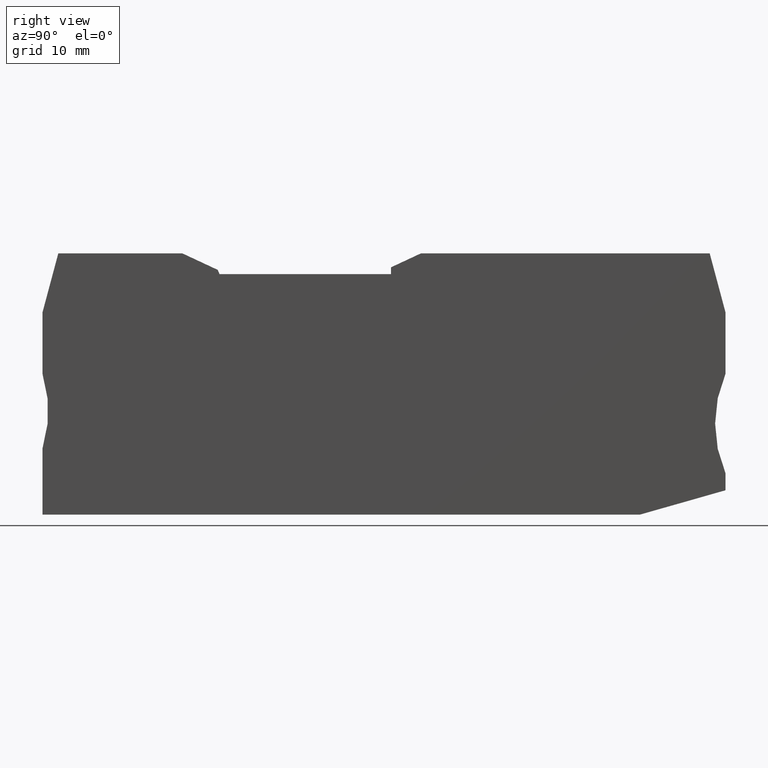
[diagram: clean part render]
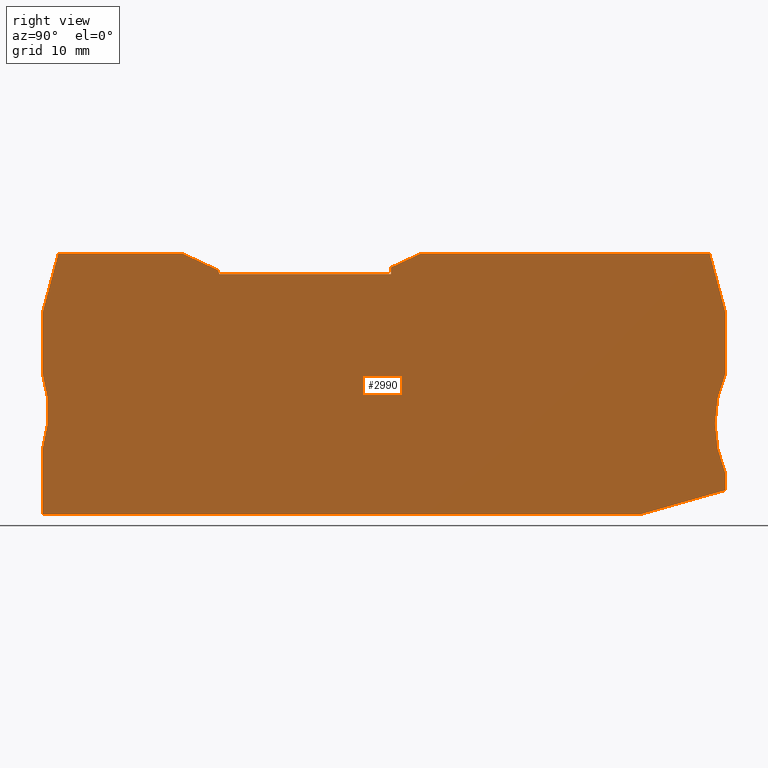
[diagram: same view with one face highlighted and labeled with its STEP entity id]
A machine part, right view. The second image highlights one B-rep face of the part: STEP entity #2990.
In plain terms, the highlighted planar face has unit normal (1, 0, 0).
Its self-contained STEP definition (entity closure, byte-faithful):
#1540=CARTESIAN_POINT('',(73.4877845817932,-13.5354749771187,
2.19999999999998));
#1550=DIRECTION('',(0.,0.,1.));
#1560=DIRECTION('',(1.,0.,0.));
#1570=AXIS2_PLACEMENT_3D('',#1540,#1550,#1560);
#1580=PLANE('',#1570);
#1590=CARTESIAN_POINT('',(8.72968082603374,-33.886127,2.19999999999998))
;
#1600=DIRECTION('',(0.,-1.,0.));
#1610=VECTOR('',#1600,1.);
#1620=LINE('',#1590,#1610);
#1630=CARTESIAN_POINT('',(8.72968082603374,-30.2000000000147,
2.19999999999998));
#1640=VERTEX_POINT('',#1630);
#1650=CARTESIAN_POINT('',(8.72968082603374,-38.2000000000045,
2.19999999999998));
#1660=VERTEX_POINT('',#1650);
#1670=EDGE_CURVE('',#1640,#1660,#1620,.T.);
#1680=ORIENTED_EDGE('',*,*,#1670,.T.);
#1690=CARTESIAN_POINT('',(-5.57940719521947,-25.7000000000117,
2.19999999999998));
#1700=DIRECTION('',(0.,0.,1.));
#1710=DIRECTION('',(1.,0.,0.));
#1720=AXIS2_PLACEMENT_3D('',#1690,#1700,#1710);
#1730=CIRCLE('',#1720,15.);
#1740=CARTESIAN_POINT('',(8.72968082604945,-21.2000000000586,
2.19999999999998));
#1750=VERTEX_POINT('',#1740);
#1760=EDGE_CURVE('',#1640,#1750,#1730,.T.);
#1770=ORIENTED_EDGE('',*,*,#1760,.F.);
#1780=CARTESIAN_POINT('',(8.72968082604465,-33.886127,2.19999999999998))
;
#1790=DIRECTION('',(-3.78848562751832E-13,-1.,0.));
#1800=VECTOR('',#1790,1.);
#1810=LINE('',#1780,#1800);
#1820=CARTESIAN_POINT('',(8.72968082605227,-13.7655444566222,
2.19999999999998));
#1830=VERTEX_POINT('',#1820);
#1840=EDGE_CURVE('',#1830,#1750,#1810,.T.);
#1850=ORIENTED_EDGE('',*,*,#1840,.T.);
#1860=CARTESIAN_POINT('',(3.33838698230316,-33.886127,2.19999999999998))
;
#1870=DIRECTION('',(-0.258819045102848,-0.965925826288981,0.));
#1880=VECTOR('',#1870,1.);
#1890=LINE('',#1860,#1880);
#1900=CARTESIAN_POINT('',(10.6362852169109,-6.65000000001358,
2.19999999999998));
#1910=VERTEX_POINT('',#1900);
#1920=EDGE_CURVE('',#1910,#1830,#1890,.T.);
#1930=ORIENTED_EDGE('',*,*,#1920,.T.);
#1940=CARTESIAN_POINT('',(47.920285,-6.65000000001358,2.19999999999998))
;
#1950=DIRECTION('',(-1.,3.77302406067959E-29,0.));
#1960=VECTOR('',#1950,1.);
#1970=LINE('',#1940,#1960);
#1980=CARTESIAN_POINT('',(25.6296808273747,-6.65000000001358,
2.19999999999998));
#1990=VERTEX_POINT('',#1980);
#2000=EDGE_CURVE('',#1990,#1910,#1970,.T.);
#2010=ORIENTED_EDGE('',*,*,#2000,.T.);
#2020=CARTESIAN_POINT('',(47.920285,-17.0442794306105,2.19999999999998))
;
#2030=DIRECTION('',(0.90630778703665,-0.422618261740699,0.));
#2040=VECTOR('',#2030,1.);
#2050=LINE('',#2020,#2040);
#2060=CARTESIAN_POINT('',(29.8952339400211,-8.63906008270748,
2.19999999999998));
#2070=VERTEX_POINT('',#2060);
#2080=EDGE_CURVE('',#1990,#2070,#2050,.T.);
#2090=ORIENTED_EDGE('',*,*,#2080,.F.);
#2100=CARTESIAN_POINT('',(40.5658283475003,-33.886127,2.19999999999998))
;
#2110=DIRECTION('',(-0.389303997086195,0.92110933002153,0.));
#2120=VECTOR('',#2110,1.);
#2130=LINE('',#2100,#2120);
#2140=CARTESIAN_POINT('',(30.1111811089338,-9.15000000001106,
2.19999999999998));
#2150=VERTEX_POINT('',#2140);
#2160=EDGE_CURVE('',#2150,#2070,#2130,.T.);
#2170=ORIENTED_EDGE('',*,*,#2160,.T.);
#2180=CARTESIAN_POINT('',(47.920285,-9.15000000001105,2.19999999999998))
;
#2190=DIRECTION('',(-1.,-6.69640348774667E-16,0.));
#2200=VECTOR('',#2190,1.);
#2210=LINE('',#2180,#2200);
#2220=CARTESIAN_POINT('',(50.8284150539722,-9.15000000001105,
2.19999999999998));
#2230=VERTEX_POINT('',#2220);
#2240=EDGE_CURVE('',#2230,#2150,#2210,.T.);
#2250=ORIENTED_EDGE('',*,*,#2240,.T.);
#2260=CARTESIAN_POINT('',(50.8284150539722,-33.886127,2.19999999999998))
;
#2270=DIRECTION('',(0.,-1.,0.));
#2280=VECTOR('',#2270,1.);
#2290=LINE('',#2260,#2280);
#2300=CARTESIAN_POINT('',(50.8284150539722,-8.32929780858542,
2.19999999999998));
#2310=VERTEX_POINT('',#2300);
#2320=EDGE_CURVE('',#2310,#2230,#2290,.T.);
#2330=ORIENTED_EDGE('',*,*,#2320,.T.);
#2340=CARTESIAN_POINT('',(47.920285,-9.68538112366281,2.19999999999998))
;
#2350=DIRECTION('',(-0.906307787036715,-0.42261826174056,0.));
#2360=VECTOR('',#2350,1.);
#2370=LINE('',#2340,#2360);
#2380=CARTESIAN_POINT('',(54.4296808260525,-6.65000000001358,
2.19999999999998));
#2390=VERTEX_POINT('',#2380);
#2400=EDGE_CURVE('',#2390,#2310,#2370,.T.);
#2410=ORIENTED_EDGE('',*,*,#2400,.T.);
#2420=CARTESIAN_POINT('',(47.920285,-6.65000000001358,2.19999999999998))
;
#2430=DIRECTION('',(-1.,-2.77555756156289E-17,0.));
#2440=VECTOR('',#2430,1.);
#2450=LINE('',#2420,#2440);
#2460=CARTESIAN_POINT('',(89.323076435176,-6.65000000001358,
2.19999999999998));
#2470=VERTEX_POINT('',#2460);
#2480=EDGE_CURVE('',#2470,#2390,#2450,.T.);
#2490=ORIENTED_EDGE('',*,*,#2480,.T.);
#2500=CARTESIAN_POINT('',(96.6209746697856,-33.886127,2.19999999999998))
;
#2510=DIRECTION('',(-0.258819045102908,0.965925826288965,0.));
#2520=VECTOR('',#2510,1.);
#2530=LINE('',#2500,#2520);
#2540=CARTESIAN_POINT('',(91.2296808260532,-13.7655444566897,
2.19999999999998));
#2550=VERTEX_POINT('',#2540);
#2560=EDGE_CURVE('',#2550,#2470,#2530,.T.);
#2570=ORIENTED_EDGE('',*,*,#2560,.T.);
#2580=CARTESIAN_POINT('',(91.2296808260532,-33.886127,2.19999999999998))
;
#2590=DIRECTION('',(-2.77555756156289E-17,1.,0.));
#2600=VECTOR('',#2590,1.);
#2610=LINE('',#2580,#2600);
#2620=CARTESIAN_POINT('',(91.2296808260532,-21.2000000000058,
2.19999999999998));
#2630=VERTEX_POINT('',#2620);
#2640=EDGE_CURVE('',#2630,#2550,#2610,.T.);
#2650=ORIENTED_EDGE('',*,*,#2640,.T.);
#2660=CARTESIAN_POINT('',(104.977407910921,-27.2000000000058,
2.19999999999998));
#2670=DIRECTION('',(0.,0.,1.));
#2680=DIRECTION('',(1.,0.,0.));
#2690=AXIS2_PLACEMENT_3D('',#2660,#2670,#2680);
#2700=CIRCLE('',#2690,15.);
#2710=CARTESIAN_POINT('',(91.2296808273924,-33.2000000030743,
2.19999999999998));
#2720=VERTEX_POINT('',#2710);
#2730=EDGE_CURVE('',#2630,#2720,#2700,.T.);
#2740=ORIENTED_EDGE('',*,*,#2730,.F.);
#2750=CARTESIAN_POINT('',(91.2296808273924,-33.886127,2.19999999999998))
;
#2760=DIRECTION('',(0.,1.,0.));
#2770=VECTOR('',#2760,1.);
#2780=LINE('',#2750,#2770);
#2790=CARTESIAN_POINT('',(91.2296808273924,-35.2645043788768,
2.19999999999998));
#2800=VERTEX_POINT('',#2790);
#2810=EDGE_CURVE('',#2800,#2720,#2780,.T.);
#2820=ORIENTED_EDGE('',*,*,#2810,.T.);
#2830=CARTESIAN_POINT('',(47.920285,-47.5820316150173,2.19999999999998))
;
#2840=DIRECTION('',(-0.961855207107832,-0.273559062287377,0.));
#2850=VECTOR('',#2840,1.);
#2860=LINE('',#2830,#2850);
#2870=CARTESIAN_POINT('',(80.9082470389631,-38.2000000000045,
2.19999999999998));
#2880=VERTEX_POINT('',#2870);
#2890=EDGE_CURVE('',#2800,#2880,#2860,.T.);
#2900=ORIENTED_EDGE('',*,*,#2890,.F.);
#2910=CARTESIAN_POINT('',(47.920285,-38.2000000000045,2.19999999999998))
;
#2920=DIRECTION('',(1.,0.,0.));
#2930=VECTOR('',#2920,1.);
#2940=LINE('',#2910,#2930);
#2950=EDGE_CURVE('',#1660,#2880,#2940,.T.);
#2960=ORIENTED_EDGE('',*,*,#2950,.T.);
#2970=EDGE_LOOP('',(#2960,#2900,#2820,#2740,#2650,#2570,#2490,#2410,
#2330,#2250,#2170,#2090,#2010,#1930,#1850,#1770,#1680));
#2980=FACE_OUTER_BOUND('',#2970,.T.);
#2990=ADVANCED_FACE('',(#2980),#1580,.T.);